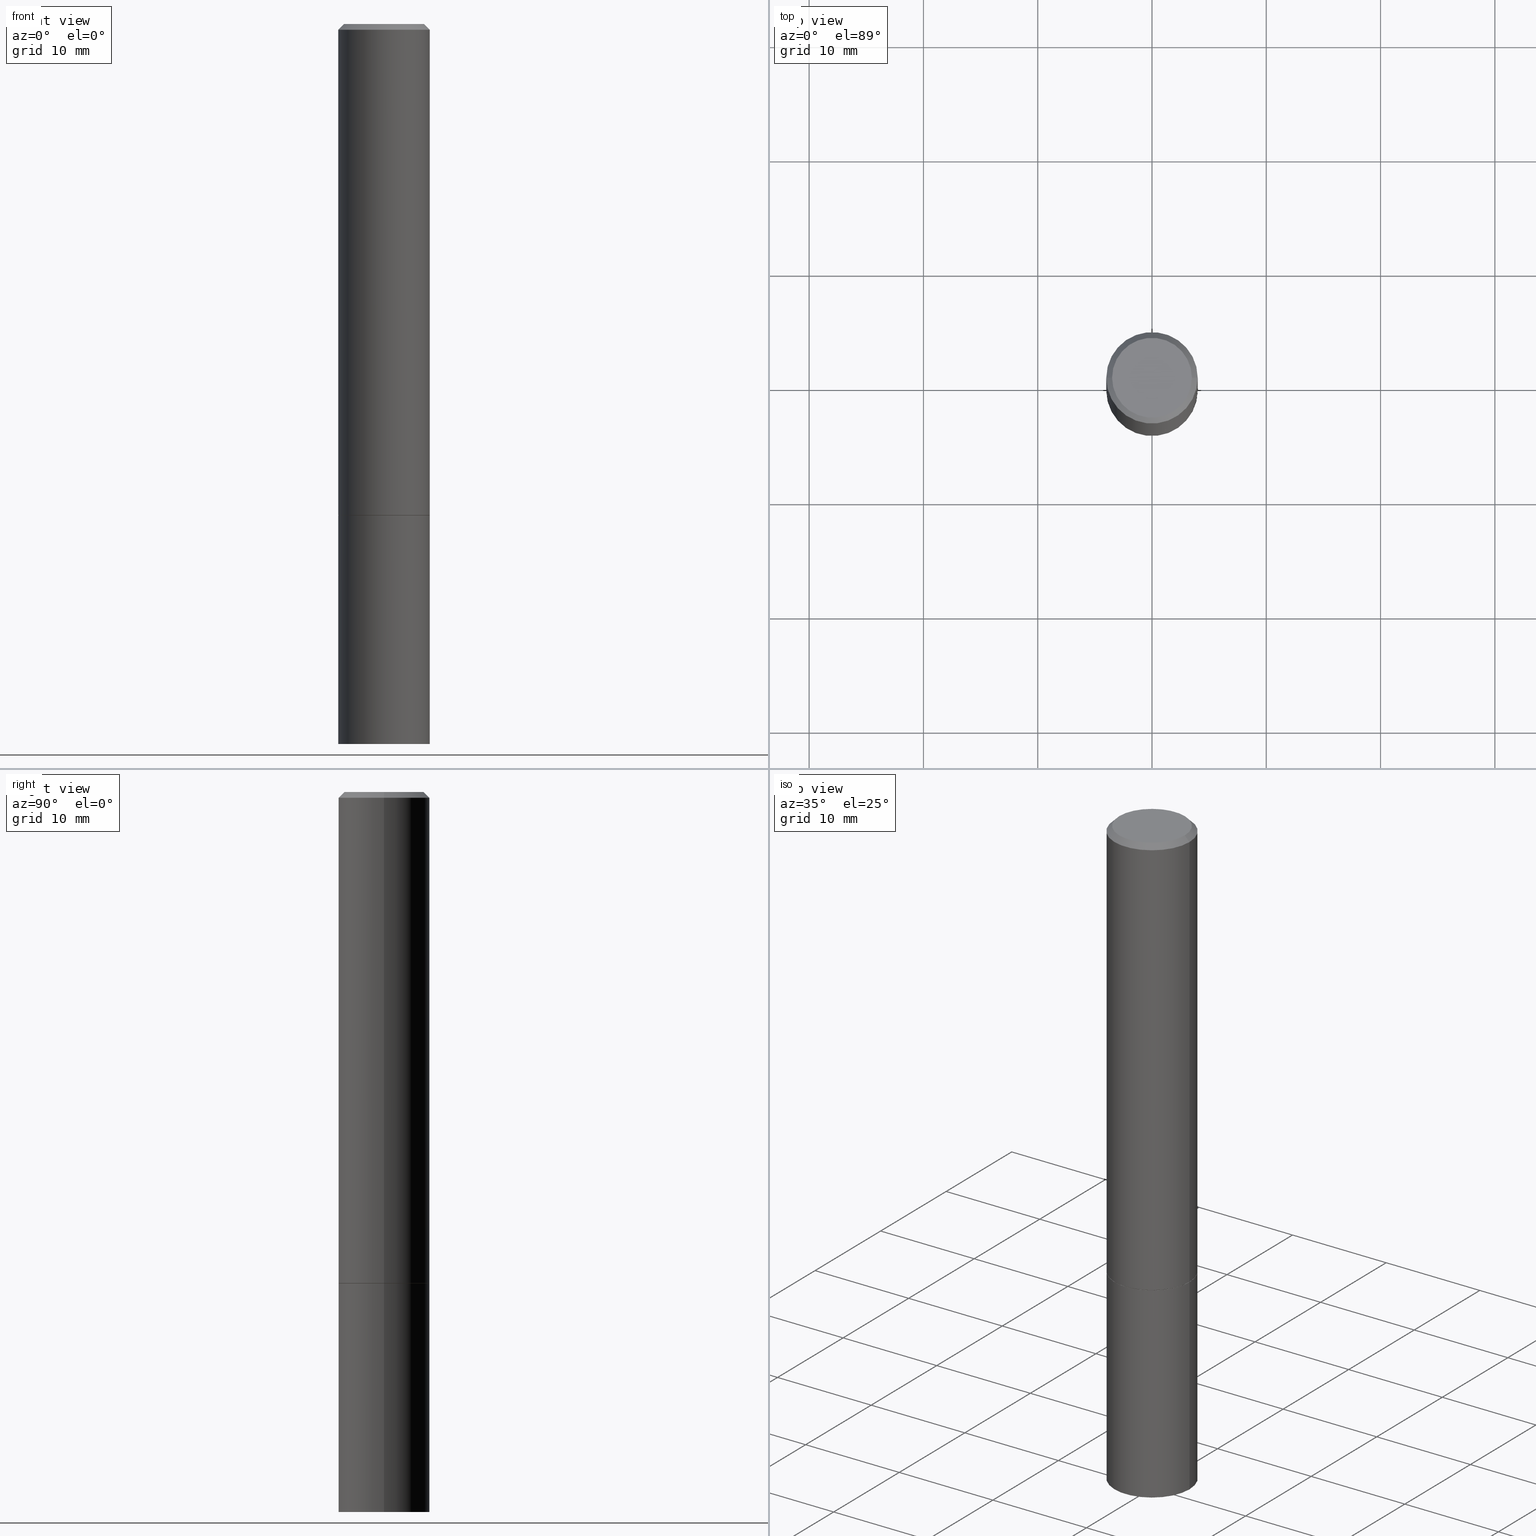
[diagram: canonical four-view strip — front | top / right | iso, engineering-drawing reading convention]
A machine part, canonical four-view strip (front | top / right | iso — engineering-drawing reading convention). The complete STEP part file that produces these views, byte-faithful:
ISO-10303-21;
HEADER;
FILE_DESCRIPTION (( 'STEP AP203' ),
    '1' );
FILE_NAME ('42610.STEP',
    '2024-02-28T03:14:32',
    ( '' ),
    ( '' ),
    'SwSTEP 2.0',
    'SolidWorks 2023',
    '' );
FILE_SCHEMA (( 'CONFIG_CONTROL_DESIGN' ));
ENDSEC;

DATA;
#1 = VECTOR ( 'NONE', #138, 39.37007874015748143 ) ;
#2 = DATE_AND_TIME ( #258, #126 ) ;
#3 = DIRECTION ( 'NONE',  ( 2.438088387897960049E-29, -3.491481338843145188E-15, -1.000000000000000000 ) ) ;
#4 = ORIENTED_EDGE ( 'NONE', *, *, #34, .T. ) ;
#5 = DIRECTION ( 'NONE',  ( -2.445468806185136597E-29, 3.491481338843145583E-15, 1.000000000000000000 ) ) ;
#6 = APPROVAL_DATE_TIME ( #2, #291 ) ;
#7 = ORIENTED_EDGE ( 'NONE', *, *, #182, .T. ) ;
#8 = PLANE ( 'NONE',  #282 ) ;
#9 = AXIS2_PLACEMENT_3D ( 'NONE', #27, #314, #21 ) ;
#10 = ORIENTED_EDGE ( 'NONE', *, *, #287, .T. ) ;
#11 = VERTEX_POINT ( 'NONE', #184 ) ;
#12 = ORIENTED_EDGE ( 'NONE', *, *, #124, .T. ) ;
#13 = VECTOR ( 'NONE', #278, 39.37007874015748143 ) ;
#14 = CARTESIAN_POINT ( 'NONE',  ( 0.000000000000000000, 0.000000000000000000, 0.000000000000000000 ) ) ;
#15 = EDGE_CURVE ( 'NONE', #237, #90, #224, .T. ) ;
#16 = APPROVAL_ROLE ( '' ) ;
#17 = LINE ( 'NONE', #164, #142 ) ;
#18 = DIRECTION ( 'NONE',  ( 1.000000000000000000, -6.982962677686265922E-15, 4.876173381029105647E-29 ) ) ;
#19 = ADVANCED_FACE ( 'NONE', ( #69 ), #319, .T. ) ;
#20 = CARTESIAN_POINT ( 'NONE',  ( 4.139934141990818918E-29, -5.910728758527562653E-15, -1.692900000000000293 ) ) ;
#21 = DIRECTION ( 'NONE',  ( 1.000000000000000000, -6.982962677686261977E-15, 0.000000000000000000 ) ) ;
#22 = CARTESIAN_POINT ( 'NONE',  ( 0.1574999999999998901, -1.099816621735586297E-15, 7.679978421878593829E-30 ) ) ;
#23 = CC_DESIGN_SECURITY_CLASSIFICATION ( #270, ( #101 ) ) ;
#24 = CARTESIAN_POINT ( 'NONE',  ( -0.1565000000000000002, -4.793430922714783655E-15, -1.692900000000000738 ) ) ;
#25 = APPROVAL_DATE_TIME ( #43, #137 ) ;
#26 = EDGE_LOOP ( 'NONE', ( #234, #345 ) ) ;
#27 = CARTESIAN_POINT ( 'NONE',  ( 6.065496279980994755E-29, -8.659921164732655335E-15, -2.480300000000000171 ) ) ;
#28 = PERSON_AND_ORGANIZATION ( #294, #71 ) ;
#29 = DIRECTION ( 'NONE',  ( 1.000000000000000000, -6.982962677686265922E-15, 4.876176775795935232E-29 ) ) ;
#30 = PERSON_AND_ORGANIZATION_ROLE ( 'creator' ) ;
#31 = AXIS2_PLACEMENT_3D ( 'NONE', #348, #206, #177 ) ;
#32 = DIRECTION ( 'NONE',  ( -2.445468806185136597E-29, 3.491481338843145583E-15, 1.000000000000000000 ) ) ;
#33 =( GEOMETRIC_REPRESENTATION_CONTEXT ( 3 ) GLOBAL_UNCERTAINTY_ASSIGNED_CONTEXT ( ( #68 ) ) GLOBAL_UNIT_ASSIGNED_CONTEXT ( ( #123, #343, #238 ) ) REPRESENTATION_CONTEXT ( 'NONE', 'WORKASPACE' ) );
#34 = EDGE_CURVE ( 'NONE', #317, #11, #81, .T. ) ;
#35 = APPROVAL_DATE_TIME ( #201, #193 ) ;
#36 = EDGE_LOOP ( 'NONE', ( #128, #299, #66, #328 ) ) ;
#37 = EDGE_CURVE ( 'NONE', #353, #96, #289, .T. ) ;
#38 = ORIENTED_EDGE ( 'NONE', *, *, #341, .F. ) ;
#39 = CARTESIAN_POINT ( 'NONE',  ( 0.000000000000000000, 0.000000000000000000, 0.000000000000000000 ) ) ;
#40 = AXIS2_PLACEMENT_3D ( 'NONE', #111, #286, #56 ) ;
#41 = ORIENTED_EDGE ( 'NONE', *, *, #76, .F. ) ;
#42 = ORIENTED_EDGE ( 'NONE', *, *, #190, .F. ) ;
#43 = DATE_AND_TIME ( #324, #52 ) ;
#44 = DIMENSIONAL_EXPONENTS ( 1.000000000000000000, 0.000000000000000000, 0.000000000000000000, 0.000000000000000000, 0.000000000000000000, 0.000000000000000000, 0.000000000000000000 ) ;
#45 = CIRCLE ( 'NONE', #118, 0.1575000000000000011 ) ;
#46 = DIRECTION ( 'NONE',  ( 0.000000000000000000, 0.000000000000000000, 1.000000000000000000 ) ) ;
#47 = PRODUCT_DEFINITION_SHAPE ( 'NONE', 'NONE',  #267 ) ;
#48 = PERSON_AND_ORGANIZATION_ROLE ( 'design_owner' ) ;
#49 = EDGE_LOOP ( 'NONE', ( #130, #203, #311, #264 ) ) ;
#50 = DIRECTION ( 'NONE',  ( -2.445468806185136597E-29, 3.491481338843145583E-15, 1.000000000000000000 ) ) ;
#51 = CIRCLE ( 'NONE', #301, 0.1574999999999998346 ) ;
#52 = LOCAL_TIME ( 22, 14, 32.00000000000000000, #133 ) ;
#53 = CALENDAR_DATE ( 2024, 27, 2 ) ;
#54 = LINE ( 'NONE', #340, #183 ) ;
#55 = CARTESIAN_POINT ( 'NONE',  ( -0.1575000000000000011, -6.166220152807950602E-15, -1.692900000000000293 ) ) ;
#56 = DIRECTION ( 'NONE',  ( -1.000000000000000000, 6.982962677686265922E-15, 0.000000000000000000 ) ) ;
#57 = DIRECTION ( 'NONE',  ( 1.000000000000000000, -6.982962677686268288E-15, 0.000000000000000000 ) ) ;
#58 = CYLINDRICAL_SURFACE ( 'NONE', #225, 0.1575000000000000011 ) ;
#59 = DIRECTION ( 'NONE',  ( -2.445468806185136597E-29, 3.491481338843145583E-15, 1.000000000000000000 ) ) ;
#60 = AXIS2_PLACEMENT_3D ( 'NONE', #191, #195, #169 ) ;
#61 = EDGE_LOOP ( 'NONE', ( #88, #129, #214, #268 ) ) ;
#62 = DIRECTION ( 'NONE',  ( 2.445468806185136597E-29, -3.491481338843145583E-15, -1.000000000000000000 ) ) ;
#63 = PERSON_AND_ORGANIZATION ( #294, #71 ) ;
#64 = DIRECTION ( 'NONE',  ( 1.000000000000000000, -6.982962677686266711E-15, 4.876176775795935793E-29 ) ) ;
#65 = AXIS2_PLACEMENT_3D ( 'NONE', #326, #46, #103 ) ;
#66 = ORIENTED_EDGE ( 'NONE', *, *, #124, .F. ) ;
#67 = CARTESIAN_POINT ( 'NONE',  ( 4.139934141990818918E-29, -5.910728758527562653E-15, -1.692900000000000293 ) ) ;
#68 = UNCERTAINTY_MEASURE_WITH_UNIT (LENGTH_MEASURE( 1.000000000000000082E-05 ), #123, 'distance_accuracy_value', 'NONE');
#69 = FACE_OUTER_BOUND ( 'NONE', #231, .T. ) ;
#70 = AXIS2_PLACEMENT_3D ( 'NONE', #186, #168, #18 ) ;
#71 = ORGANIZATION ( 'UNSPECIFIED', 'UNSPECIFIED', '' ) ;
#72 = EDGE_LOOP ( 'NONE', ( #194, #7 ) ) ;
#73 = PERSON_AND_ORGANIZATION ( #294, #71 ) ;
#74 = LOCAL_TIME ( 22, 14, 32.00000000000000000, #83 ) ;
#75 = ORIENTED_EDGE ( 'NONE', *, *, #165, .T. ) ;
#76 = EDGE_CURVE ( 'NONE', #11, #317, #131, .T. ) ;
#77 = DIRECTION ( 'NONE',  ( -2.445468806185136597E-29, 3.491481338843145583E-15, 1.000000000000000000 ) ) ;
#78 = PERSON_AND_ORGANIZATION ( #294, #71 ) ;
#79 = LINE ( 'NONE', #146, #172 ) ;
#80 = CARTESIAN_POINT ( 'NONE',  ( 4.890937612370280165E-31, -6.982962677686301470E-17, -0.02000000000000003164 ) ) ;
#81 = CIRCLE ( 'NONE', #212, 0.1374999999999998446 ) ;
#82 = LOCAL_TIME ( 22, 14, 32.00000000000000000, #139 ) ;
#83 = COORDINATED_UNIVERSAL_TIME_OFFSET ( 5, 0, .BEHIND. ) ;
#84 = CARTESIAN_POINT ( 'NONE',  ( 1.099816621735628304E-15, 0.1574999999999940892, -1.692900000000000960 ) ) ;
#85 = DIRECTION ( 'NONE',  ( 1.000000000000000000, -6.982962677686265922E-15, 4.876173381029105647E-29 ) ) ;
#86 = EDGE_CURVE ( 'NONE', #157, #302, #117, .T. ) ;
#87 = DIRECTION ( 'NONE',  ( -0.7071067811865466846, 2.468850131082247989E-15, -0.7071067811865483499 ) ) ;
#88 = ORIENTED_EDGE ( 'NONE', *, *, #271, .F. ) ;
#89 = CONICAL_SURFACE ( 'NONE', #213, 0.1574999999999998346, 0.7853981633974471688 ) ;
#90 = VERTEX_POINT ( 'NONE', #55 ) ;
#91 = CIRCLE ( 'NONE', #208, 0.1565000000000000002 ) ;
#92 = DATE_AND_TIME ( #121, #232 ) ;
#93 = ORIENTED_EDGE ( 'NONE', *, *, #15, .F. ) ;
#94 = DIRECTION ( 'NONE',  ( 0.7071067811864267805, -2.468850131080992517E-15, 0.7071067811866682540 ) ) ;
#95 = CC_DESIGN_PERSON_AND_ORGANIZATION_ASSIGNMENT ( #73, #48, ( #180 ) ) ;
#96 = VERTEX_POINT ( 'NONE', #136 ) ;
#97 = FACE_OUTER_BOUND ( 'NONE', #26, .T. ) ;
#98 = MANIFOLD_SOLID_BREP ( 'Body-Move/Copy2[2]', #176 ) ;
#99 = ORIENTED_EDGE ( 'NONE', *, *, #207, .T. ) ;
#100 = MECHANICAL_CONTEXT ( 'NONE', #357, 'mechanical' ) ;
#101 = PRODUCT_DEFINITION_FORMATION_WITH_SPECIFIED_SOURCE ( 'ANY', '', #180, .NOT_KNOWN. ) ;
#102 = EDGE_CURVE ( 'NONE', #317, #353, #275, .T. ) ;
#103 = DIRECTION ( 'NONE',  ( 1.000000000000000000, 0.000000000000000000, 0.000000000000000000 ) ) ;
#104 = CC_DESIGN_PERSON_AND_ORGANIZATION_ASSIGNMENT ( #173, #204, ( #270 ) ) ;
#105 = MANIFOLD_SOLID_BREP ( 'Body-Move/Copy2[1]', #250 ) ;
#106 = AXIS2_PLACEMENT_3D ( 'NONE', #84, #198, #144 ) ;
#107 = EDGE_LOOP ( 'NONE', ( #266, #236 ) ) ;
#108 = DIRECTION ( 'NONE',  ( -2.445468806185136597E-29, 3.491481338843145583E-15, 1.000000000000000000 ) ) ;
#109 = CARTESIAN_POINT ( 'NONE',  ( 4.890937612370280165E-31, -6.982962677686301470E-17, -0.02000000000000003164 ) ) ;
#110 = CARTESIAN_POINT ( 'NONE',  ( 4.139934141990819478E-29, -5.910728758527563441E-15, -1.692900000000000738 ) ) ;
#111 = CARTESIAN_POINT ( 'NONE',  ( 4.890937612370280165E-31, -6.982962677686301470E-17, -0.02000000000000003164 ) ) ;
#112 = EDGE_CURVE ( 'NONE', #148, #353, #196, .T. ) ;
#113 = LINE ( 'NONE', #22, #158 ) ;
#114 = APPROVAL_PERSON_ORGANIZATION ( #28, #291, #263 ) ;
#115 = DIRECTION ( 'NONE',  ( -2.445468806185136597E-29, 3.491481338843145583E-15, 1.000000000000000000 ) ) ;
#116 = DIRECTION ( 'NONE',  ( -2.445468806185136597E-29, 3.491481338843145583E-15, 1.000000000000000000 ) ) ;
#117 = CIRCLE ( 'NONE', #321, 0.1575000000000000011 ) ;
#118 = AXIS2_PLACEMENT_3D ( 'NONE', #20, #140, #166 ) ;
#119 = EDGE_CURVE ( 'NONE', #318, #197, #91, .T. ) ;
#120 = COORDINATED_UNIVERSAL_TIME_OFFSET ( 5, 0, .BEHIND. ) ;
#121 = CALENDAR_DATE ( 2024, 27, 2 ) ;
#122 = EDGE_LOOP ( 'NONE', ( #4, #155 ) ) ;
#123 =( CONVERSION_BASED_UNIT ( 'INCH', #315 ) LENGTH_UNIT ( ) NAMED_UNIT ( #44 ) );
#124 = EDGE_CURVE ( 'NONE', #96, #353, #51, .T. ) ;
#125 = DIRECTION ( 'NONE',  ( -2.445468806185136597E-29, 3.491481338843145583E-15, 1.000000000000000000 ) ) ;
#126 = LOCAL_TIME ( 22, 14, 32.00000000000000000, #147 ) ;
#127 = CC_DESIGN_PERSON_AND_ORGANIZATION_ASSIGNMENT ( #63, #233, ( #101 ) ) ;
#128 = ORIENTED_EDGE ( 'NONE', *, *, #241, .T. ) ;
#129 = ORIENTED_EDGE ( 'NONE', *, *, #34, .F. ) ;
#130 = ORIENTED_EDGE ( 'NONE', *, *, #165, .F. ) ;
#131 = CIRCLE ( 'NONE', #70, 0.1374999999999998446 ) ;
#132 = CC_DESIGN_APPROVAL ( #193, ( #101 ) ) ;
#133 = COORDINATED_UNIVERSAL_TIME_OFFSET ( 5, 0, .BEHIND. ) ;
#134 = AXIS2_PLACEMENT_3D ( 'NONE', #109, #59, #329 ) ;
#135 = AXIS2_PLACEMENT_3D ( 'NONE', #171, #32, #64 ) ;
#136 = CARTESIAN_POINT ( 'NONE',  ( 0.1574999999999998346, -1.150358061425878091E-15, -0.02000000000000003164 ) ) ;
#137 = APPROVAL ( #210, 'UNSPECIFIED' ) ;
#138 = DIRECTION ( 'NONE',  ( -2.445468806185136877E-29, 3.491481338843145188E-15, 1.000000000000000000 ) ) ;
#139 = COORDINATED_UNIVERSAL_TIME_OFFSET ( 5, 0, .BEHIND. ) ;
#140 = DIRECTION ( 'NONE',  ( -2.445468806185136597E-29, 3.491481338843145583E-15, 1.000000000000000000 ) ) ;
#141 = CARTESIAN_POINT ( 'NONE',  ( -0.1574999999999998346, 1.029986994958722802E-15, -0.02000000000000003164 ) ) ;
#142 = VECTOR ( 'NONE', #310, 39.37007874015748143 ) ;
#143 = APPROVAL_PERSON_ORGANIZATION ( #256, #193, #276 ) ;
#144 = DIRECTION ( 'NONE',  ( -1.000000000000000000, 6.982962677686265922E-15, -4.876176775795935793E-29 ) ) ;
#145 = DATE_AND_TIME ( #53, #74 ) ;
#146 = CARTESIAN_POINT ( 'NONE',  ( 0.1574999999999998346, -1.150358061425878091E-15, -0.02000000000000003164 ) ) ;
#147 = COORDINATED_UNIVERSAL_TIME_OFFSET ( 5, 0, .BEHIND. ) ;
#148 = VERTEX_POINT ( 'NONE', #246 ) ;
#149 = CARTESIAN_POINT ( 'NONE',  ( -0.1574999999999998346, 1.029986994958722802E-15, -0.02000000000000003164 ) ) ;
#150 = DESIGN_CONTEXT ( 'detailed design', #255, 'design' ) ;
#151 = ORIENTED_EDGE ( 'NONE', *, *, #202, .T. ) ;
#152 = DATE_TIME_ROLE ( 'classification_date' ) ;
#153 = EDGE_LOOP ( 'NONE', ( #174, #151, #296, #42 ) ) ;
#154 = FACE_OUTER_BOUND ( 'NONE', #36, .T. ) ;
#155 = ORIENTED_EDGE ( 'NONE', *, *, #76, .T. ) ;
#156 = ADVANCED_FACE ( 'NONE', ( #333 ), #358, .F. ) ;
#157 = VERTEX_POINT ( 'NONE', #307 ) ;
#158 = VECTOR ( 'NONE', #220, 39.37007874015748143 ) ;
#159 = APPLICATION_PROTOCOL_DEFINITION ( 'international standard', 'config_control_design', 1994, #255 ) ;
#160 = ORIENTED_EDGE ( 'NONE', *, *, #190, .T. ) ;
#161 = VECTOR ( 'NONE', #87, 39.37007874015748143 ) ;
#162 = DIRECTION ( 'NONE',  ( 1.000000000000000000, -6.982962677686261977E-15, 0.000000000000000000 ) ) ;
#163 = DATE_TIME_ROLE ( 'creation_date' ) ;
#164 = CARTESIAN_POINT ( 'NONE',  ( 0.1575000000000000011, -1.099816621735586889E-15, 7.679978421878598033E-30 ) ) ;
#165 = EDGE_CURVE ( 'NONE', #157, #90, #331, .T. ) ;
#166 = DIRECTION ( 'NONE',  ( 1.000000000000000000, -6.982962677686268288E-15, 0.000000000000000000 ) ) ;
#167 = DIRECTION ( 'NONE',  ( 0.7071067811865466846, -7.319954787623252890E-15, -0.7071067811865483499 ) ) ;
#168 = DIRECTION ( 'NONE',  ( -2.445468806185136597E-29, 3.491481338843145583E-15, 1.000000000000000000 ) ) ;
#169 = DIRECTION ( 'NONE',  ( 1.000000000000000000, -6.982962677686267499E-15, 0.000000000000000000 ) ) ;
#170 = EDGE_LOOP ( 'NONE', ( #41, #269, #12, #209 ) ) ;
#171 = CARTESIAN_POINT ( 'NONE',  ( 0.000000000000000000, 0.000000000000000000, 0.000000000000000000 ) ) ;
#172 = VECTOR ( 'NONE', #167, 39.37007874015748143 ) ;
#173 = PERSON_AND_ORGANIZATION ( #294, #71 ) ;
#174 = ORIENTED_EDGE ( 'NONE', *, *, #287, .F. ) ;
#175 = DIRECTION ( 'NONE',  ( 1.000000000000000000, -6.982962677686268288E-15, 0.000000000000000000 ) ) ;
#176 = CLOSED_SHELL ( 'NONE', ( #229, #351, #334, #244, #211, #279, #156, #252 ) ) ;
#177 = DIRECTION ( 'NONE',  ( 1.000000000000000000, -6.982962677686265922E-15, 4.876176775795935232E-29 ) ) ;
#178 = LINE ( 'NONE', #346, #297 ) ;
#179 = EDGE_CURVE ( 'NONE', #302, #237, #17, .T. ) ;
#180 = PRODUCT ( '42610', '42610', '', ( #100 ) ) ;
#181 = ORIENTED_EDGE ( 'NONE', *, *, #119, .T. ) ;
#182 = EDGE_CURVE ( 'NONE', #90, #237, #45, .T. ) ;
#183 = VECTOR ( 'NONE', #277, 39.37007874015748143 ) ;
#184 = CARTESIAN_POINT ( 'NONE',  ( 0.1374999999999998446, -1.046838268059731308E-15, 8.537024980207840646E-18 ) ) ;
#185 = APPROVAL_STATUS ( 'not_yet_approved' ) ;
#186 = CARTESIAN_POINT ( 'NONE',  ( -2.087702828670439639E-46, 2.980686340760894400E-32, 8.537024980200822558E-18 ) ) ;
#187 = CARTESIAN_POINT ( 'NONE',  ( 4.139934141990819478E-29, -5.910728758527563441E-15, -1.692900000000000738 ) ) ;
#188 = APPROVAL_PERSON_ORGANIZATION ( #273, #137, #16 ) ;
#189 = DIRECTION ( 'NONE',  ( 1.000000000000000000, -6.982962677686265922E-15, 4.876176775795935793E-29 ) ) ;
#190 = EDGE_CURVE ( 'NONE', #148, #323, #260, .T. ) ;
#191 = CARTESIAN_POINT ( 'NONE',  ( 4.139934141990819478E-29, -5.910728758527563441E-15, -1.692900000000000738 ) ) ;
#192 = DIRECTION ( 'NONE',  ( 1.000000000000000000, -6.982962677686267499E-15, 0.000000000000000000 ) ) ;
#193 = APPROVAL ( #185, 'UNSPECIFIED' ) ;
#194 = ORIENTED_EDGE ( 'NONE', *, *, #15, .T. ) ;
#195 = DIRECTION ( 'NONE',  ( -2.445468806185136597E-29, 3.491481338843145583E-15, 1.000000000000000000 ) ) ;
#196 = LINE ( 'NONE', #221, #1 ) ;
#197 = VERTEX_POINT ( 'NONE', #24 ) ;
#198 = DIRECTION ( 'NONE',  ( 2.438088387897960049E-29, -3.491481338843145188E-15, -1.000000000000000000 ) ) ;
#199 = AXIS2_PLACEMENT_3D ( 'NONE', #335, #222, #312 ) ;
#200 = CC_DESIGN_PERSON_AND_ORGANIZATION_ASSIGNMENT ( #78, #304, ( #267 ) ) ;
#201 = DATE_AND_TIME ( #359, #82 ) ;
#202 = EDGE_CURVE ( 'NONE', #197, #318, #313, .T. ) ;
#203 = ORIENTED_EDGE ( 'NONE', *, *, #86, .T. ) ;
#204 = PERSON_AND_ORGANIZATION_ROLE ( 'classification_officer' ) ;
#205 = ORIENTED_EDGE ( 'NONE', *, *, #37, .F. ) ;
#206 = DIRECTION ( 'NONE',  ( -2.445468806185136597E-29, 3.491481338843145583E-15, 1.000000000000000000 ) ) ;
#207 = EDGE_CURVE ( 'NONE', #323, #96, #113, .T. ) ;
#208 = AXIS2_PLACEMENT_3D ( 'NONE', #110, #336, #192 ) ;
#209 = ORIENTED_EDGE ( 'NONE', *, *, #102, .F. ) ;
#210 = APPROVAL_STATUS ( 'not_yet_approved' ) ;
#211 = ADVANCED_FACE ( 'NONE', ( #253 ), #364, .T. ) ;
#212 = AXIS2_PLACEMENT_3D ( 'NONE', #298, #77, #85 ) ;
#213 = AXIS2_PLACEMENT_3D ( 'NONE', #226, #62, #349 ) ;
#214 = ORIENTED_EDGE ( 'NONE', *, *, #102, .T. ) ;
#215 = CC_DESIGN_PERSON_AND_ORGANIZATION_ASSIGNMENT ( #261, #30, ( #101 ) ) ;
#216 = ADVANCED_FACE ( 'NONE', ( #223 ), #257, .F. ) ;
#217 = CARTESIAN_POINT ( 'NONE',  ( 4.139934141990818918E-29, -5.910728758527562653E-15, -1.692900000000000293 ) ) ;
#218 = CARTESIAN_POINT ( 'NONE',  ( 0.1565000000000000002, -7.003562417585464118E-15, -1.692900000000000738 ) ) ;
#219 = AXIS2_PLACEMENT_3D ( 'NONE', #243, #356, #361 ) ;
#220 = DIRECTION ( 'NONE',  ( -2.445468806185136877E-29, 3.491481338843145188E-15, 1.000000000000000000 ) ) ;
#221 = CARTESIAN_POINT ( 'NONE',  ( -0.1574999999999998901, 1.119104808822157012E-15, -7.747322767151471379E-30 ) ) ;
#222 = DIRECTION ( 'NONE',  ( -2.445468806185136597E-29, 3.491481338843145583E-15, 1.000000000000000000 ) ) ;
#223 = FACE_OUTER_BOUND ( 'NONE', #72, .T. ) ;
#224 = CIRCLE ( 'NONE', #352, 0.1575000000000000011 ) ;
#225 = AXIS2_PLACEMENT_3D ( 'NONE', #39, #5, #29 ) ;
#226 = CARTESIAN_POINT ( 'NONE',  ( 4.890937612370280165E-31, -6.982962677686301470E-17, -0.02000000000000003164 ) ) ;
#227 = SHAPE_DEFINITION_REPRESENTATION ( #47, #300 ) ;
#228 =( LENGTH_UNIT ( ) NAMED_UNIT ( * ) SI_UNIT ( $, .METRE. ) );
#229 = ADVANCED_FACE ( 'NONE', ( #254 ), #316, .T. ) ;
#230 = APPROVAL_STATUS ( 'not_yet_approved' ) ;
#231 = EDGE_LOOP ( 'NONE', ( #342, #75, #93, #350 ) ) ;
#232 = LOCAL_TIME ( 22, 14, 32.00000000000000000, #120 ) ;
#233 = PERSON_AND_ORGANIZATION_ROLE ( 'design_supplier' ) ;
#234 = ORIENTED_EDGE ( 'NONE', *, *, #262, .F. ) ;
#235 = DIRECTION ( 'NONE',  ( -1.000000000000000000, 6.982962677686265922E-15, -4.876176775795935793E-29 ) ) ;
#236 = ORIENTED_EDGE ( 'NONE', *, *, #202, .F. ) ;
#237 = VERTEX_POINT ( 'NONE', #365 ) ;
#238 =( NAMED_UNIT ( * ) SI_UNIT ( $, .STERADIAN. ) SOLID_ANGLE_UNIT ( ) );
#239 = ORIENTED_EDGE ( 'NONE', *, *, #112, .F. ) ;
#240 = CC_DESIGN_APPROVAL ( #137, ( #267 ) ) ;
#241 = EDGE_CURVE ( 'NONE', #323, #148, #355, .T. ) ;
#242 = AXIS2_PLACEMENT_3D ( 'NONE', #245, #280, #330 ) ;
#243 = CARTESIAN_POINT ( 'NONE',  ( 4.139934141990819478E-29, -5.910728758527563441E-15, -1.692900000000000738 ) ) ;
#244 = ADVANCED_FACE ( 'NONE', ( #338 ), #362, .T. ) ;
#245 = CARTESIAN_POINT ( 'NONE',  ( 9.601573681818602922E-16, 0.1374999999999998446, -4.758101716008314943E-16 ) ) ;
#246 = CARTESIAN_POINT ( 'NONE',  ( -0.1575000000000000011, -1.869428643160631107E-15, -1.691900000000000404 ) ) ;
#247 = CARTESIAN_POINT ( 'NONE',  ( 0.1575000000000000011, -9.759737786468242027E-15, -2.480300000000000171 ) ) ;
#248 = CARTESIAN_POINT ( 'NONE',  ( 4.137488673184633315E-29, -5.907237277188718857E-15, -1.691900000000000404 ) ) ;
#249 = FACE_OUTER_BOUND ( 'NONE', #49, .T. ) ;
#250 = CLOSED_SHELL ( 'NONE', ( #19, #339, #216, #325 ) ) ;
#251 = CIRCLE ( 'NONE', #9, 0.1575000000000000011 ) ;
#252 = ADVANCED_FACE ( 'NONE', ( #285 ), #306, .F. ) ;
#253 = FACE_OUTER_BOUND ( 'NONE', #292, .T. ) ;
#254 = FACE_OUTER_BOUND ( 'NONE', #309, .T. ) ;
#255 = APPLICATION_CONTEXT ( 'configuration controlled 3d designs of mechanical parts and assemblies' ) ;
#256 = PERSON_AND_ORGANIZATION ( #294, #71 ) ;
#257 = PLANE ( 'NONE',  #106 ) ;
#258 = CALENDAR_DATE ( 2024, 27, 2 ) ;
#259 = AXIS2_PLACEMENT_3D ( 'NONE', #217, #281, #189 ) ;
#260 = CIRCLE ( 'NONE', #265, 0.1575000000000000011 ) ;
#261 = PERSON_AND_ORGANIZATION ( #294, #71 ) ;
#262 = EDGE_CURVE ( 'NONE', #302, #157, #251, .T. ) ;
#263 = APPROVAL_ROLE ( '' ) ;
#264 = ORIENTED_EDGE ( 'NONE', *, *, #182, .F. ) ;
#265 = AXIS2_PLACEMENT_3D ( 'NONE', #248, #115, #57 ) ;
#266 = ORIENTED_EDGE ( 'NONE', *, *, #119, .F. ) ;
#267 = PRODUCT_DEFINITION ( 'UNKNOWN', '', #101, #150 ) ;
#268 = ORIENTED_EDGE ( 'NONE', *, *, #37, .T. ) ;
#269 = ORIENTED_EDGE ( 'NONE', *, *, #271, .T. ) ;
#270 = SECURITY_CLASSIFICATION ( '', '', #295 ) ;
#271 = EDGE_CURVE ( 'NONE', #11, #96, #79, .T. ) ;
#272 = APPLICATION_PROTOCOL_DEFINITION ( 'international standard', 'config_control_design', 1994, #357 ) ;
#273 = PERSON_AND_ORGANIZATION ( #294, #71 ) ;
#274 = DIRECTION ( 'NONE',  ( -2.445468806185136597E-29, 3.491481338843145583E-15, 1.000000000000000000 ) ) ;
#275 = LINE ( 'NONE', #141, #161 ) ;
#276 = APPROVAL_ROLE ( '' ) ;
#277 = DIRECTION ( 'NONE',  ( -0.7071067811864267805, 7.493145998869918709E-15, 0.7071067811866682540 ) ) ;
#278 = DIRECTION ( 'NONE',  ( -2.445468806185136877E-29, 3.491481338843145188E-15, 1.000000000000000000 ) ) ;
#279 = ADVANCED_FACE ( 'NONE', ( #366 ), #322, .T. ) ;
#280 = DIRECTION ( 'NONE',  ( 2.438088387897960049E-29, -3.491481338843145188E-15, -1.000000000000000000 ) ) ;
#281 = DIRECTION ( 'NONE',  ( -2.438088387897960049E-29, 3.491481338843145188E-15, 1.000000000000000000 ) ) ;
#282 = AXIS2_PLACEMENT_3D ( 'NONE', #320, #3, #235 ) ;
#283 = CARTESIAN_POINT ( 'NONE',  ( -0.1575000000000000011, 1.119104808822157801E-15, -7.747322767151475583E-30 ) ) ;
#284 = ORIENTED_EDGE ( 'NONE', *, *, #241, .F. ) ;
#285 = FACE_OUTER_BOUND ( 'NONE', #122, .T. ) ;
#286 = DIRECTION ( 'NONE',  ( 2.445468806185136597E-29, -3.491481338843145583E-15, -1.000000000000000000 ) ) ;
#287 = EDGE_CURVE ( 'NONE', #197, #148, #54, .T. ) ;
#288 = CYLINDRICAL_SURFACE ( 'NONE', #135, 0.1574999999999998901 ) ;
#289 = CIRCLE ( 'NONE', #134, 0.1574999999999998346 ) ;
#290 = AXIS2_PLACEMENT_3D ( 'NONE', #187, #116, #363 ) ;
#291 = APPROVAL ( #230, 'UNSPECIFIED' ) ;
#292 = EDGE_LOOP ( 'NONE', ( #239, #160, #99, #205 ) ) ;
#293 = FACE_OUTER_BOUND ( 'NONE', #170, .T. ) ;
#294 = PERSON ( 'UNSPECIFIED', 'UNSPECIFIED', 'UNSPECIFIED', ('UNSPECIFIED'), ('UNSPECIFIED'), ('UNSPECIFIED') ) ;
#295 = SECURITY_CLASSIFICATION_LEVEL ( 'unclassified' ) ;
#296 = ORIENTED_EDGE ( 'NONE', *, *, #341, .T. ) ;
#297 = VECTOR ( 'NONE', #94, 39.37007874015748143 ) ;
#298 = CARTESIAN_POINT ( 'NONE',  ( -2.087702828670439639E-46, 2.980686340760894400E-32, 8.537024980200822558E-18 ) ) ;
#299 = ORIENTED_EDGE ( 'NONE', *, *, #112, .T. ) ;
#300 = ADVANCED_BREP_SHAPE_REPRESENTATION ( '42610', ( #105, #98, #65 ), #33 ) ;
#301 = AXIS2_PLACEMENT_3D ( 'NONE', #80, #274, #308 ) ;
#302 = VERTEX_POINT ( 'NONE', #247 ) ;
#303 = CARTESIAN_POINT ( 'NONE',  ( 6.065496279980994755E-29, -8.659921164732655335E-15, -2.480300000000000171 ) ) ;
#304 = PERSON_AND_ORGANIZATION_ROLE ( 'creator' ) ;
#305 = AXIS2_PLACEMENT_3D ( 'NONE', #14, #108, #327 ) ;
#306 = PLANE ( 'NONE',  #242 ) ;
#307 = CARTESIAN_POINT ( 'NONE',  ( -0.1575000000000000011, -6.166220152807950602E-15, -2.480300000000000171 ) ) ;
#308 = DIRECTION ( 'NONE',  ( 1.000000000000000000, -6.982962677686265922E-15, 0.000000000000000000 ) ) ;
#309 = EDGE_LOOP ( 'NONE', ( #181, #10, #284, #38 ) ) ;
#310 = DIRECTION ( 'NONE',  ( -2.445468806185136877E-29, 3.491481338843145188E-15, 1.000000000000000000 ) ) ;
#311 = ORIENTED_EDGE ( 'NONE', *, *, #179, .T. ) ;
#312 = DIRECTION ( 'NONE',  ( 1.000000000000000000, -6.982962677686268288E-15, 0.000000000000000000 ) ) ;
#313 = CIRCLE ( 'NONE', #219, 0.1565000000000000002 ) ;
#314 = DIRECTION ( 'NONE',  ( -2.445468806185136597E-29, 3.491481338843145583E-15, 1.000000000000000000 ) ) ;
#315 = LENGTH_MEASURE_WITH_UNIT ( LENGTH_MEASURE( 0.02539999999999999897 ), #228 );
#316 = CONICAL_SURFACE ( 'NONE', #60, 0.1565000000000000002, 0.7853981633972775267 ) ;
#317 = VERTEX_POINT ( 'NONE', #360 ) ;
#318 = VERTEX_POINT ( 'NONE', #218 ) ;
#319 = CYLINDRICAL_SURFACE ( 'NONE', #31, 0.1575000000000000011 ) ;
#320 = CARTESIAN_POINT ( 'NONE',  ( 1.099816621735647434E-15, 0.1574999999999913136, -2.480300000000001059 ) ) ;
#321 = AXIS2_PLACEMENT_3D ( 'NONE', #303, #50, #162 ) ;
#322 = CONICAL_SURFACE ( 'NONE', #290, 0.1565000000000000002, 0.7853981633972775267 ) ;
#323 = VERTEX_POINT ( 'NONE', #332 ) ;
#324 = CALENDAR_DATE ( 2024, 27, 2 ) ;
#325 = ADVANCED_FACE ( 'NONE', ( #249 ), #58, .T. ) ;
#326 = CARTESIAN_POINT ( 'NONE',  ( 0.000000000000000000, 0.000000000000000000, 0.000000000000000000 ) ) ;
#327 = DIRECTION ( 'NONE',  ( 1.000000000000000000, -6.982962677686266711E-15, 4.876176775795935793E-29 ) ) ;
#328 = ORIENTED_EDGE ( 'NONE', *, *, #207, .F. ) ;
#329 = DIRECTION ( 'NONE',  ( 1.000000000000000000, -6.982962677686265922E-15, 0.000000000000000000 ) ) ;
#330 = DIRECTION ( 'NONE',  ( -1.000000000000000000, 6.982962677686265922E-15, -4.876176775795935793E-29 ) ) ;
#331 = LINE ( 'NONE', #283, #13 ) ;
#332 = CARTESIAN_POINT ( 'NONE',  ( 0.1575000000000000011, -7.007053898924306337E-15, -1.691900000000000404 ) ) ;
#333 = FACE_OUTER_BOUND ( 'NONE', #107, .T. ) ;
#334 = ADVANCED_FACE ( 'NONE', ( #293 ), #89, .T. ) ;
#335 = CARTESIAN_POINT ( 'NONE',  ( 4.137488673184633315E-29, -5.907237277188718857E-15, -1.691900000000000404 ) ) ;
#336 = DIRECTION ( 'NONE',  ( -2.445468806185136597E-29, 3.491481338843145583E-15, 1.000000000000000000 ) ) ;
#337 = PRODUCT_RELATED_PRODUCT_CATEGORY ( 'detail', '', ( #180 ) ) ;
#338 = FACE_OUTER_BOUND ( 'NONE', #61, .T. ) ;
#339 = ADVANCED_FACE ( 'NONE', ( #97 ), #8, .T. ) ;
#340 = CARTESIAN_POINT ( 'NONE',  ( -0.1565000000000000002, -4.798729377063006846E-15, -1.692900000000000738 ) ) ;
#341 = EDGE_CURVE ( 'NONE', #318, #323, #178, .T. ) ;
#342 = ORIENTED_EDGE ( 'NONE', *, *, #262, .T. ) ;
#343 =( NAMED_UNIT ( * ) PLANE_ANGLE_UNIT ( ) SI_UNIT ( $, .RADIAN. ) );
#344 = CC_DESIGN_APPROVAL ( #291, ( #270 ) ) ;
#345 = ORIENTED_EDGE ( 'NONE', *, *, #86, .F. ) ;
#346 = CARTESIAN_POINT ( 'NONE',  ( 0.1565000000000000002, -7.003562417585464118E-15, -1.692900000000000738 ) ) ;
#347 = CC_DESIGN_DATE_AND_TIME_ASSIGNMENT ( #92, #152, ( #270 ) ) ;
#348 = CARTESIAN_POINT ( 'NONE',  ( 0.000000000000000000, 0.000000000000000000, 0.000000000000000000 ) ) ;
#349 = DIRECTION ( 'NONE',  ( -1.000000000000000000, 6.982962677686265922E-15, 0.000000000000000000 ) ) ;
#350 = ORIENTED_EDGE ( 'NONE', *, *, #179, .F. ) ;
#351 = ADVANCED_FACE ( 'NONE', ( #154 ), #288, .T. ) ;
#352 = AXIS2_PLACEMENT_3D ( 'NONE', #67, #125, #175 ) ;
#353 = VERTEX_POINT ( 'NONE', #149 ) ;
#354 = CC_DESIGN_DATE_AND_TIME_ASSIGNMENT ( #145, #163, ( #267 ) ) ;
#355 = CIRCLE ( 'NONE', #199, 0.1575000000000000011 ) ;
#356 = DIRECTION ( 'NONE',  ( -2.445468806185136597E-29, 3.491481338843145583E-15, 1.000000000000000000 ) ) ;
#357 = APPLICATION_CONTEXT ( 'configuration controlled 3d designs of mechanical parts and assemblies' ) ;
#358 = PLANE ( 'NONE',  #259 ) ;
#359 = CALENDAR_DATE ( 2024, 27, 2 ) ;
#360 = CARTESIAN_POINT ( 'NONE',  ( -0.1374999999999998446, 9.950721815702915469E-16, 8.537024980193986277E-18 ) ) ;
#361 = DIRECTION ( 'NONE',  ( 1.000000000000000000, -6.982962677686267499E-15, 0.000000000000000000 ) ) ;
#362 = CONICAL_SURFACE ( 'NONE', #40, 0.1574999999999998346, 0.7853981633974471688 ) ;
#363 = DIRECTION ( 'NONE',  ( 1.000000000000000000, -6.982962677686267499E-15, 0.000000000000000000 ) ) ;
#364 = CYLINDRICAL_SURFACE ( 'NONE', #305, 0.1574999999999998901 ) ;
#365 = CARTESIAN_POINT ( 'NONE',  ( 0.1575000000000000011, -7.010545380263150133E-15, -1.692900000000000293 ) ) ;
#366 = FACE_OUTER_BOUND ( 'NONE', #153, .T. ) ;
ENDSEC;
END-ISO-10303-21;
